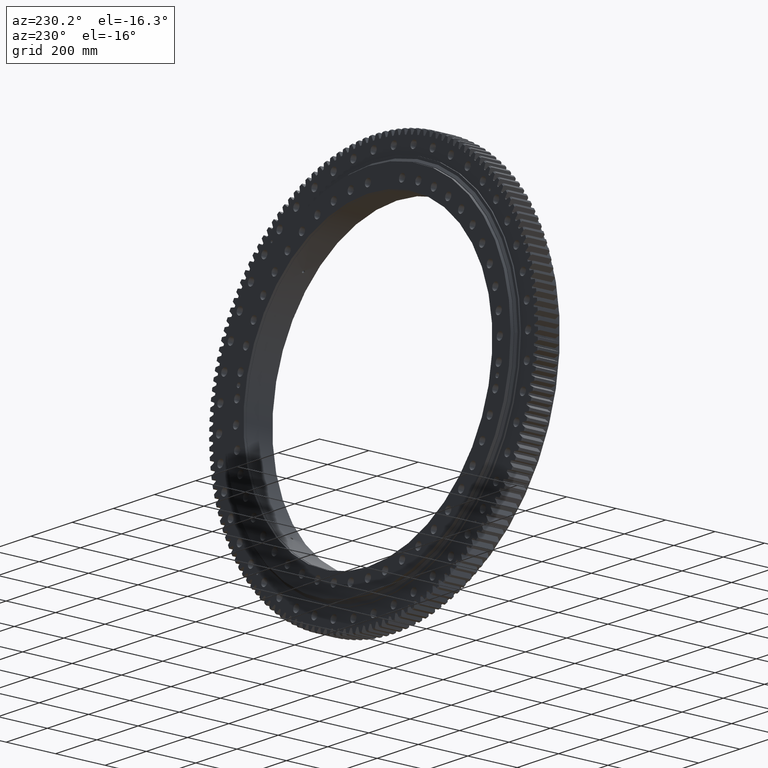
[diagram: clean part render]
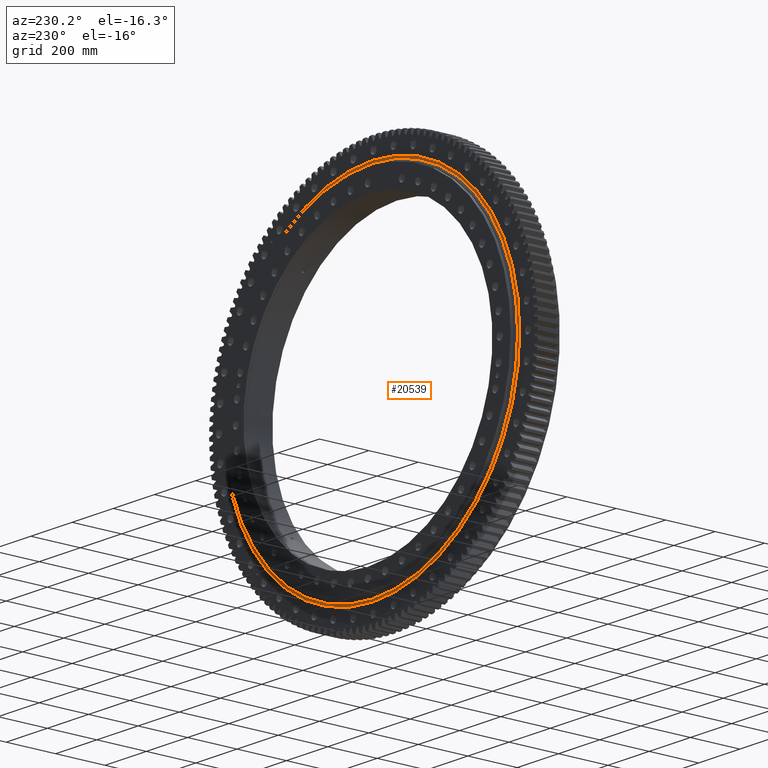
[diagram: same view with one face highlighted and labeled with its STEP entity id]
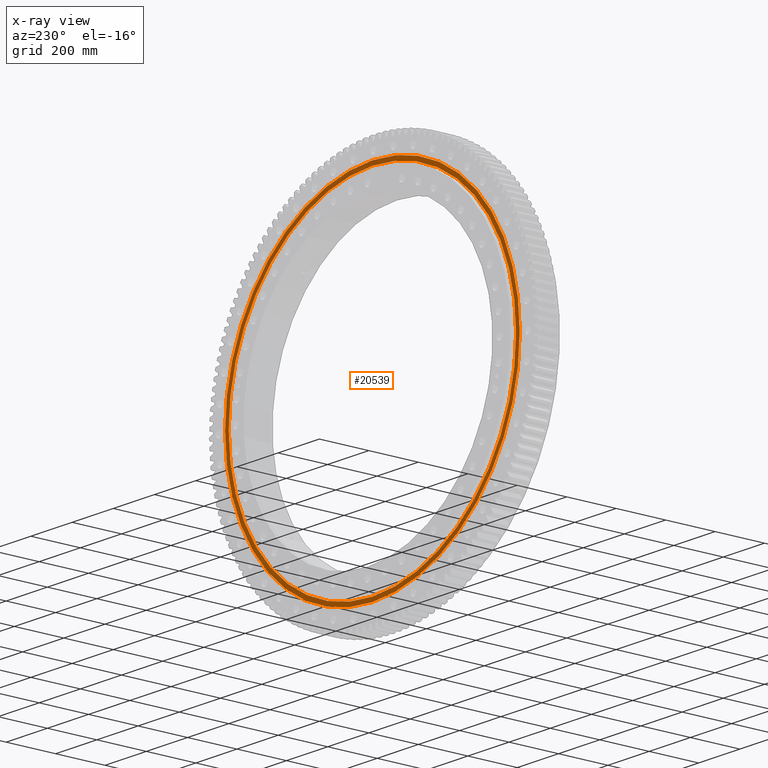
[diagram: x-ray of the same camera — body ghosted, the highlighted face saturated]
A machine part, auxiliary view. The second image highlights one B-rep face of the part: STEP entity #20539.
The next image is the same camera in x-ray: the body ghosted, the highlighted face saturated — about 0% of this face is hidden behind the body in this view.
In plain terms, the highlighted planar face has unit normal (0, -1, 0).
Its self-contained STEP definition (entity closure, byte-faithful):
#579 = FACE_BOUND ( 'NONE', #5685, .T. ) ;
#1347 = DIRECTION ( 'NONE',  ( 0.0000000000000000000, 0.0000000000000000000, -1.000000000000000000 ) ) ;
#4938 = PLANE ( 'NONE',  #21191 ) ;
#5685 = EDGE_LOOP ( 'NONE', ( #30715, #24555 ) ) ;
#5818 = ORIENTED_EDGE ( 'NONE', *, *, #9846, .T. ) ;
#7351 = VERTEX_POINT ( 'NONE', #37232 ) ;
#7436 = CIRCLE ( 'NONE', #17781, 715.0000000000000000 ) ;
#9578 = AXIS2_PLACEMENT_3D ( 'NONE', #32053, #11807, #35483 ) ;
#9846 = EDGE_CURVE ( 'NONE', #16419, #41785, #29770, .T. ) ;
#11212 = CARTESIAN_POINT ( 'NONE',  ( 0.0000000000000000000, 52.50000000000000700, -5.927773653007782900E-015 ) ) ;
#11507 = DIRECTION ( 'NONE',  ( -0.0000000000000000000, 1.000000000000000000, -0.0000000000000000000 ) ) ;
#11721 = CARTESIAN_POINT ( 'NONE',  ( 0.0000000000000000000, 52.50000000000000700, 802.0000000000000000 ) ) ;
#11807 = DIRECTION ( 'NONE',  ( -0.0000000000000000000, 1.000000000000000000, -0.0000000000000000000 ) ) ;
#14468 = VERTEX_POINT ( 'NONE', #29909 ) ;
#14583 = DIRECTION ( 'NONE',  ( 0.0000000000000000000, 0.0000000000000000000, -1.000000000000000000 ) ) ;
#15103 = DIRECTION ( 'NONE',  ( 0.0000000000000000000, -0.0000000000000000000, -1.000000000000000000 ) ) ;
#16419 = VERTEX_POINT ( 'NONE', #27770 ) ;
#17781 = AXIS2_PLACEMENT_3D ( 'NONE', #11212, #34869, #14583 ) ;
#18895 = EDGE_CURVE ( 'NONE', #14468, #7351, #28121, .T. ) ;
#19284 = EDGE_CURVE ( 'NONE', #41785, #16419, #7436, .T. ) ;
#20539 = ADVANCED_FACE ( 'NONE', ( #43445, #579 ), #4938, .F. ) ;
#21191 = AXIS2_PLACEMENT_3D ( 'NONE', #11721, #35380, #15103 ) ;
#21579 = DIRECTION ( 'NONE',  ( -0.0000000000000000000, 1.000000000000000000, -0.0000000000000000000 ) ) ;
#21734 = AXIS2_PLACEMENT_3D ( 'NONE', #41886, #21579, #1347 ) ;
#24013 = ORIENTED_EDGE ( 'NONE', *, *, #19284, .T. ) ;
#24555 = ORIENTED_EDGE ( 'NONE', *, *, #42986, .F. ) ;
#27770 = CARTESIAN_POINT ( 'NONE',  ( 8.756224613903574500E-014, 52.50000000000000700, -715.0000000000000000 ) ) ;
#28121 = CIRCLE ( 'NONE', #9578, 697.2499999999998900 ) ;
#29770 = CIRCLE ( 'NONE', #21734, 715.0000000000000000 ) ;
#29909 = CARTESIAN_POINT ( 'NONE',  ( 0.0000000000000000000, 52.50000000000000700, 697.2499999999998900 ) ) ;
#30300 = AXIS2_PLACEMENT_3D ( 'NONE', #31784, #11507, #35169 ) ;
#30715 = ORIENTED_EDGE ( 'NONE', *, *, #18895, .F. ) ;
#31784 = CARTESIAN_POINT ( 'NONE',  ( 0.0000000000000000000, 52.50000000000000700, 0.0000000000000000000 ) ) ;
#32053 = CARTESIAN_POINT ( 'NONE',  ( 0.0000000000000000000, 52.50000000000000700, 0.0000000000000000000 ) ) ;
#34869 = DIRECTION ( 'NONE',  ( -0.0000000000000000000, 1.000000000000000000, -0.0000000000000000000 ) ) ;
#35169 = DIRECTION ( 'NONE',  ( 0.0000000000000000000, 0.0000000000000000000, 1.000000000000000000 ) ) ;
#35380 = DIRECTION ( 'NONE',  ( 0.0000000000000000000, -1.000000000000000000, 0.0000000000000000000 ) ) ;
#35483 = DIRECTION ( 'NONE',  ( 0.0000000000000000000, 0.0000000000000000000, 1.000000000000000000 ) ) ;
#37232 = CARTESIAN_POINT ( 'NONE',  ( 8.538849807054918900E-014, 52.50000000000000700, -697.2499999999998900 ) ) ;
#40531 = CARTESIAN_POINT ( 'NONE',  ( 0.0000000000000000000, 52.50000000000000700, 715.0000000000000000 ) ) ;
#41199 = CIRCLE ( 'NONE', #30300, 697.2499999999998900 ) ;
#41785 = VERTEX_POINT ( 'NONE', #40531 ) ;
#41886 = CARTESIAN_POINT ( 'NONE',  ( 0.0000000000000000000, 52.50000000000000700, -5.927773653007782900E-015 ) ) ;
#42338 = EDGE_LOOP ( 'NONE', ( #24013, #5818 ) ) ;
#42986 = EDGE_CURVE ( 'NONE', #7351, #14468, #41199, .T. ) ;
#43445 = FACE_OUTER_BOUND ( 'NONE', #42338, .T. ) ;